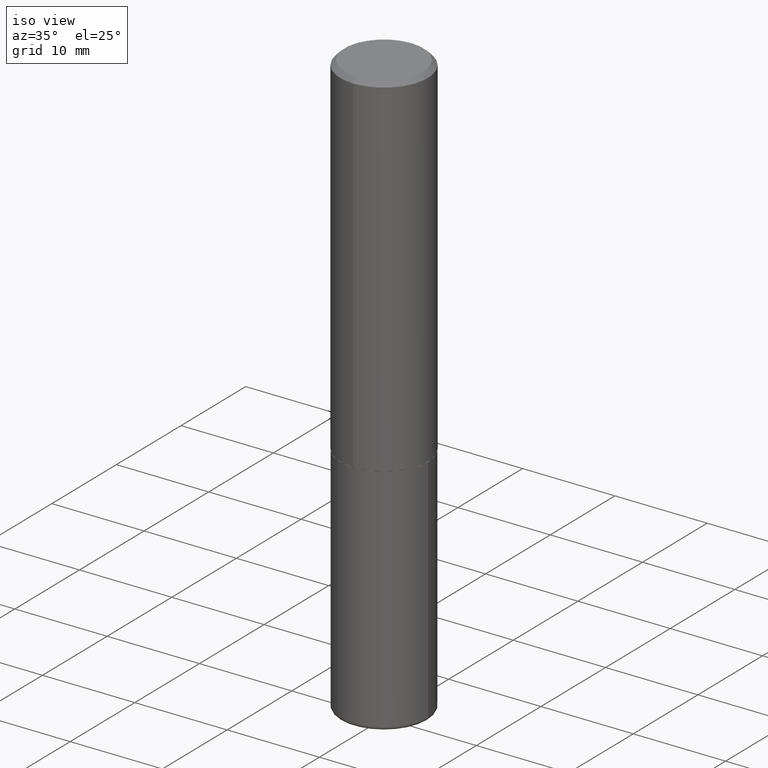
[diagram: clean part render]
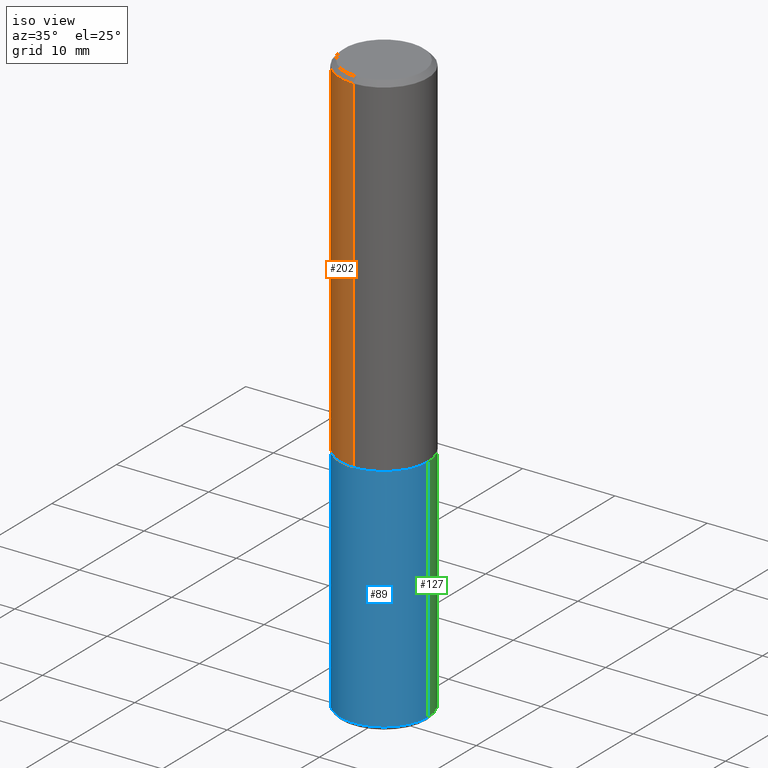
[diagram: same view with three faces highlighted in distinct colors, each labeled with its STEP entity id]
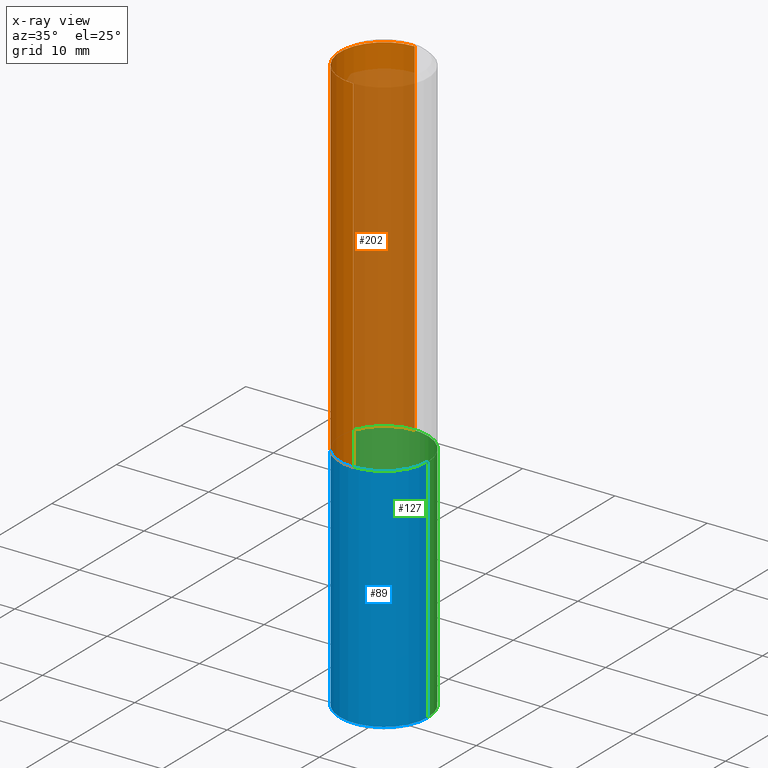
[diagram: x-ray of the same camera — body ghosted, the three highlighted faces saturated]
A machine part, iso view with three faces highlighted in distinct colors.
The next image is the same camera in x-ray (body ghosted, the three faces saturated) — at least one of them is partly hidden behind the body in this view.
Their STEP definitions:

[orange] entity #202 — the highlighted cylindrical surface (partial cylindrical patch) has radius 4.7625 mm, axis along (-0, 0, 1).
#5 = DIRECTION ( 'NONE',  ( -2.444793606782976109E-29, 3.492448262817002669E-15, 1.000000000000000000 ) ) ;
#29 = ORIENTED_EDGE ( 'NONE', *, *, #180, .F. ) ;
#31 = VECTOR ( 'NONE', #362, 39.37007874015748143 ) ;
#37 = FACE_OUTER_BOUND ( 'NONE', #214, .T. ) ;
#40 = CARTESIAN_POINT ( 'NONE',  ( -1.309305502066175600E-15, -0.1875000000000000833, 6.548340492781882223E-16 ) ) ;
#44 = VERTEX_POINT ( 'NONE', #227 ) ;
#52 = ORIENTED_EDGE ( 'NONE', *, *, #224, .T. ) ;
#78 = CARTESIAN_POINT ( 'NONE',  ( 4.889587213565963568E-31, -6.984896525634020819E-17, -0.02000000000000004205 ) ) ;
#118 = DIRECTION ( 'NONE',  ( -6.982962677686265922E-15, -1.000000000000000000, 2.913971193241877611E-15 ) ) ;
#129 = LINE ( 'NONE', #237, #31 ) ;
#139 = ORIENTED_EDGE ( 'NONE', *, *, #347, .T. ) ;
#149 = ORIENTED_EDGE ( 'NONE', *, *, #232, .F. ) ;
#154 = VERTEX_POINT ( 'NONE', #210 ) ;
#158 = CIRCLE ( 'NONE', #261, 0.1874999999999999722 ) ;
#163 = VECTOR ( 'NONE', #5, 39.37007874015748143 ) ;
#167 = CARTESIAN_POINT ( 'NONE',  ( 0.000000000000000000, 0.000000000000000000, 0.000000000000000000 ) ) ;
#180 = EDGE_CURVE ( 'NONE', #44, #348, #158, .T. ) ;
#202 = ADVANCED_FACE ( 'NONE', ( #37 ), #334, .T. ) ;
#210 = CARTESIAN_POINT ( 'NONE',  ( 1.332267629550206781E-15, 0.1874999999999949485, -1.499000000000000554 ) ) ;
#214 = EDGE_LOOP ( 'NONE', ( #149, #139, #52, #29 ) ) ;
#215 = CARTESIAN_POINT ( 'NONE',  ( -1.286343374582161379E-15, -0.1875000000000000555, -0.01999999999999938979 ) ) ;
#220 = CARTESIAN_POINT ( 'NONE',  ( -1.309305502066139509E-15, -0.1875000000000054123, -1.498999999999999444 ) ) ;
#224 = EDGE_CURVE ( 'NONE', #312, #348, #296, .T. ) ;
#227 = CARTESIAN_POINT ( 'NONE',  ( 1.309305502066175205E-15, 0.1874999999999999167, -0.02000000000000069431 ) ) ;
#232 = EDGE_CURVE ( 'NONE', #154, #44, #129, .T. ) ;
#237 = CARTESIAN_POINT ( 'NONE',  ( 1.332267629550188243E-15, 0.1875000000000000833, -6.548340492781882223E-16 ) ) ;
#255 = AXIS2_PLACEMENT_3D ( 'NONE', #346, #341, #118 ) ;
#261 = AXIS2_PLACEMENT_3D ( 'NONE', #78, #338, #267 ) ;
#267 = DIRECTION ( 'NONE',  ( -6.982962677686266711E-15, -1.000000000000000000, 3.483106191921935949E-15 ) ) ;
#268 = DIRECTION ( 'NONE',  ( -6.982962677686266711E-15, -1.000000000000000000, 3.492448262817002274E-15 ) ) ;
#296 = LINE ( 'NONE', #40, #163 ) ;
#312 = VERTEX_POINT ( 'NONE', #220 ) ;
#325 = AXIS2_PLACEMENT_3D ( 'NONE', #167, #370, #268 ) ;
#334 = CYLINDRICAL_SURFACE ( 'NONE', #325, 0.1875000000000000833 ) ;
#336 = CIRCLE ( 'NONE', #255, 0.1875000000000001943 ) ;
#338 = DIRECTION ( 'NONE',  ( -2.444793606782976109E-29, 3.492448262817002669E-15, 1.000000000000000000 ) ) ;
#341 = DIRECTION ( 'NONE',  ( -2.444793606782976109E-29, 3.492448262817002669E-15, 1.000000000000000000 ) ) ;
#346 = CARTESIAN_POINT ( 'NONE',  ( 3.664745616567681106E-29, -5.235179945962687995E-15, -1.499000000000000110 ) ) ;
#347 = EDGE_CURVE ( 'NONE', #154, #312, #336, .T. ) ;
#348 = VERTEX_POINT ( 'NONE', #215 ) ;
#362 = DIRECTION ( 'NONE',  ( -2.444793606782976109E-29, 3.492448262817002669E-15, 1.000000000000000000 ) ) ;
#370 = DIRECTION ( 'NONE',  ( -2.444793606782976109E-29, 3.492448262817002669E-15, 1.000000000000000000 ) ) ;

[blue] entity #89 — the highlighted cylindrical surface (partial cylindrical patch) has radius 4.7625 mm, axis along (-0, 0, 1).
#20 = VERTEX_POINT ( 'NONE', #322 ) ;
#28 = ORIENTED_EDGE ( 'NONE', *, *, #39, .T. ) ;
#39 = EDGE_CURVE ( 'NONE', #20, #176, #335, .T. ) ;
#61 = ORIENTED_EDGE ( 'NONE', *, *, #125, .F. ) ;
#62 = DIRECTION ( 'NONE',  ( -2.445468806185136597E-29, 3.491481338843145583E-15, 1.000000000000000000 ) ) ;
#64 = VECTOR ( 'NONE', #283, 39.37007874015748143 ) ;
#74 = AXIS2_PLACEMENT_3D ( 'NONE', #79, #62, #269 ) ;
#77 = EDGE_LOOP ( 'NONE', ( #416, #28, #326, #61 ) ) ;
#79 = CARTESIAN_POINT ( 'NONE',  ( 0.000000000000000000, 0.000000000000000000, 0.000000000000000000 ) ) ;
#89 = ADVANCED_FACE ( 'NONE', ( #141 ), #192, .T. ) ;
#95 = DIRECTION ( 'NONE',  ( 1.000000000000000000, -6.982962677686265922E-15, 0.000000000000000000 ) ) ;
#119 = DIRECTION ( 'NONE',  ( -2.445468806185136597E-29, 3.491481338843145583E-15, 1.000000000000000000 ) ) ;
#120 = CARTESIAN_POINT ( 'NONE',  ( 0.1875000000000000555, -1.309305502066175205E-15, 9.142831454617382414E-30 ) ) ;
#124 = CARTESIAN_POINT ( 'NONE',  ( 6.076989983370064174E-29, -8.676331127025216680E-15, -2.484999999999999876 ) ) ;
#125 = EDGE_CURVE ( 'NONE', #340, #208, #230, .T. ) ;
#141 = FACE_OUTER_BOUND ( 'NONE', #77, .T. ) ;
#173 = CARTESIAN_POINT ( 'NONE',  ( 0.1874999999999999722, -9.985636629091391688E-15, -2.484999999999999876 ) ) ;
#176 = VERTEX_POINT ( 'NONE', #173 ) ;
#192 = CYLINDRICAL_SURFACE ( 'NONE', #74, 0.1875000000000000555 ) ;
#195 = AXIS2_PLACEMENT_3D ( 'NONE', #124, #119, #95 ) ;
#208 = VERTEX_POINT ( 'NONE', #395 ) ;
#212 = LINE ( 'NONE', #120, #64 ) ;
#230 = CIRCLE ( 'NONE', #272, 0.1875000000000000278 ) ;
#236 = DIRECTION ( 'NONE',  ( -2.445468806185136597E-29, 3.491481338843145583E-15, 1.000000000000000000 ) ) ;
#269 = DIRECTION ( 'NONE',  ( 1.000000000000000000, -6.982962677686265922E-15, 4.876176775795935793E-29 ) ) ;
#272 = AXIS2_PLACEMENT_3D ( 'NONE', #389, #236, #339 ) ;
#274 = VECTOR ( 'NONE', #373, 39.37007874015748143 ) ;
#283 = DIRECTION ( 'NONE',  ( -2.445468806185136877E-29, 3.491481338843145188E-15, 1.000000000000000000 ) ) ;
#316 = EDGE_CURVE ( 'NONE', #176, #208, #212, .T. ) ;
#322 = CARTESIAN_POINT ( 'NONE',  ( -0.1874999999999999722, -7.344063497475028832E-15, -2.484999999999999876 ) ) ;
#326 = ORIENTED_EDGE ( 'NONE', *, *, #316, .T. ) ;
#335 = CIRCLE ( 'NONE', #195, 0.1875000000000000555 ) ;
#339 = DIRECTION ( 'NONE',  ( 1.000000000000000000, -6.982962677686266711E-15, 0.000000000000000000 ) ) ;
#340 = VERTEX_POINT ( 'NONE', #413 ) ;
#350 = CARTESIAN_POINT ( 'NONE',  ( -0.1875000000000000555, 1.332267629550188243E-15, -9.223003294227950793E-30 ) ) ;
#373 = DIRECTION ( 'NONE',  ( -2.445468806185136877E-29, 3.491481338843145188E-15, 1.000000000000000000 ) ) ;
#375 = EDGE_CURVE ( 'NONE', #20, #340, #405, .T. ) ;
#389 = CARTESIAN_POINT ( 'NONE',  ( 3.668203209277704895E-29, -5.237222008264718177E-15, -1.500000000000000222 ) ) ;
#395 = CARTESIAN_POINT ( 'NONE',  ( 0.1875000000000000278, -6.546527510330893974E-15, -1.500000000000000222 ) ) ;
#405 = LINE ( 'NONE', #350, #274 ) ;
#413 = CARTESIAN_POINT ( 'NONE',  ( -0.1875000000000000278, -5.624508938094779185E-15, -1.500000000000000222 ) ) ;
#416 = ORIENTED_EDGE ( 'NONE', *, *, #375, .F. ) ;

[green] entity #127 — the highlighted cylindrical surface (partial cylindrical patch) has radius 4.7625 mm, axis along (-0, 0, 1).
#20 = VERTEX_POINT ( 'NONE', #322 ) ;
#58 = FACE_OUTER_BOUND ( 'NONE', #187, .T. ) ;
#64 = VECTOR ( 'NONE', #283, 39.37007874015748143 ) ;
#65 = AXIS2_PLACEMENT_3D ( 'NONE', #106, #137, #391 ) ;
#83 = DIRECTION ( 'NONE',  ( 1.000000000000000000, -6.982962677686265922E-15, 0.000000000000000000 ) ) ;
#87 = ORIENTED_EDGE ( 'NONE', *, *, #375, .T. ) ;
#106 = CARTESIAN_POINT ( 'NONE',  ( 3.668203209277704895E-29, -5.237222008264718177E-15, -1.500000000000000222 ) ) ;
#120 = CARTESIAN_POINT ( 'NONE',  ( 0.1875000000000000555, -1.309305502066175205E-15, 9.142831454617382414E-30 ) ) ;
#127 = ADVANCED_FACE ( 'NONE', ( #58 ), #260, .T. ) ;
#137 = DIRECTION ( 'NONE',  ( -2.445468806185136597E-29, 3.491481338843145583E-15, 1.000000000000000000 ) ) ;
#173 = CARTESIAN_POINT ( 'NONE',  ( 0.1874999999999999722, -9.985636629091391688E-15, -2.484999999999999876 ) ) ;
#176 = VERTEX_POINT ( 'NONE', #173 ) ;
#181 = ORIENTED_EDGE ( 'NONE', *, *, #316, .F. ) ;
#182 = DIRECTION ( 'NONE',  ( -2.445468806185136597E-29, 3.491481338843145583E-15, 1.000000000000000000 ) ) ;
#187 = EDGE_LOOP ( 'NONE', ( #257, #87, #369, #181 ) ) ;
#208 = VERTEX_POINT ( 'NONE', #395 ) ;
#212 = LINE ( 'NONE', #120, #64 ) ;
#257 = ORIENTED_EDGE ( 'NONE', *, *, #331, .T. ) ;
#260 = CYLINDRICAL_SURFACE ( 'NONE', #309, 0.1875000000000000555 ) ;
#262 = EDGE_CURVE ( 'NONE', #208, #340, #295, .T. ) ;
#274 = VECTOR ( 'NONE', #373, 39.37007874015748143 ) ;
#283 = DIRECTION ( 'NONE',  ( -2.445468806185136877E-29, 3.491481338843145188E-15, 1.000000000000000000 ) ) ;
#293 = DIRECTION ( 'NONE',  ( 1.000000000000000000, -6.982962677686265922E-15, 4.876176775795935793E-29 ) ) ;
#295 = CIRCLE ( 'NONE', #65, 0.1875000000000000278 ) ;
#300 = CIRCLE ( 'NONE', #383, 0.1875000000000000555 ) ;
#309 = AXIS2_PLACEMENT_3D ( 'NONE', #365, #399, #293 ) ;
#316 = EDGE_CURVE ( 'NONE', #176, #208, #212, .T. ) ;
#322 = CARTESIAN_POINT ( 'NONE',  ( -0.1874999999999999722, -7.344063497475028832E-15, -2.484999999999999876 ) ) ;
#331 = EDGE_CURVE ( 'NONE', #176, #20, #300, .T. ) ;
#340 = VERTEX_POINT ( 'NONE', #413 ) ;
#350 = CARTESIAN_POINT ( 'NONE',  ( -0.1875000000000000555, 1.332267629550188243E-15, -9.223003294227950793E-30 ) ) ;
#365 = CARTESIAN_POINT ( 'NONE',  ( 0.000000000000000000, 0.000000000000000000, 0.000000000000000000 ) ) ;
#369 = ORIENTED_EDGE ( 'NONE', *, *, #262, .F. ) ;
#373 = DIRECTION ( 'NONE',  ( -2.445468806185136877E-29, 3.491481338843145188E-15, 1.000000000000000000 ) ) ;
#375 = EDGE_CURVE ( 'NONE', #20, #340, #405, .T. ) ;
#378 = CARTESIAN_POINT ( 'NONE',  ( 6.076989983370064174E-29, -8.676331127025216680E-15, -2.484999999999999876 ) ) ;
#383 = AXIS2_PLACEMENT_3D ( 'NONE', #378, #182, #83 ) ;
#391 = DIRECTION ( 'NONE',  ( 1.000000000000000000, -6.982962677686266711E-15, 0.000000000000000000 ) ) ;
#395 = CARTESIAN_POINT ( 'NONE',  ( 0.1875000000000000278, -6.546527510330893974E-15, -1.500000000000000222 ) ) ;
#399 = DIRECTION ( 'NONE',  ( -2.445468806185136597E-29, 3.491481338843145583E-15, 1.000000000000000000 ) ) ;
#405 = LINE ( 'NONE', #350, #274 ) ;
#413 = CARTESIAN_POINT ( 'NONE',  ( -0.1875000000000000278, -5.624508938094779185E-15, -1.500000000000000222 ) ) ;